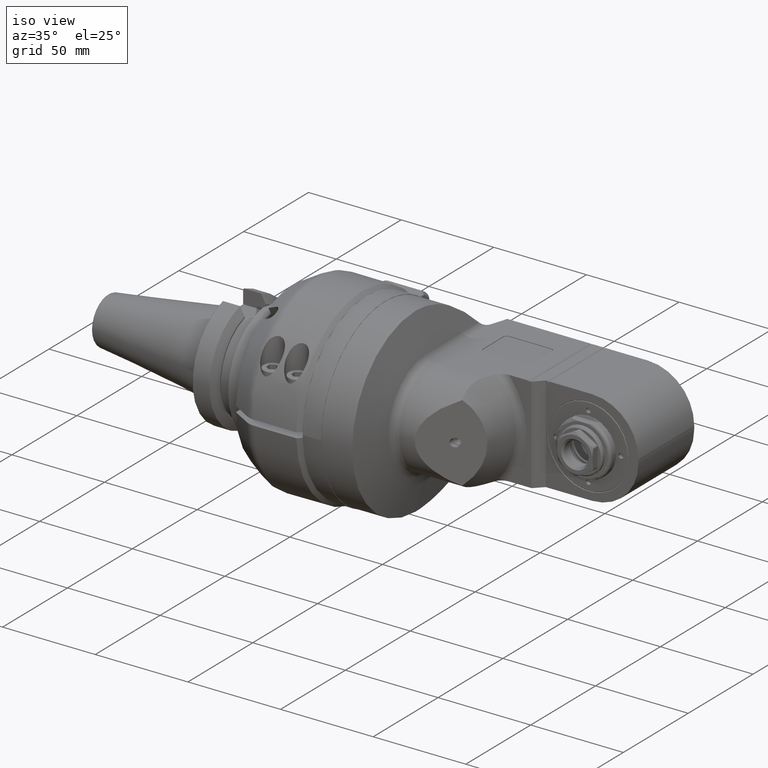
[diagram: clean part render]
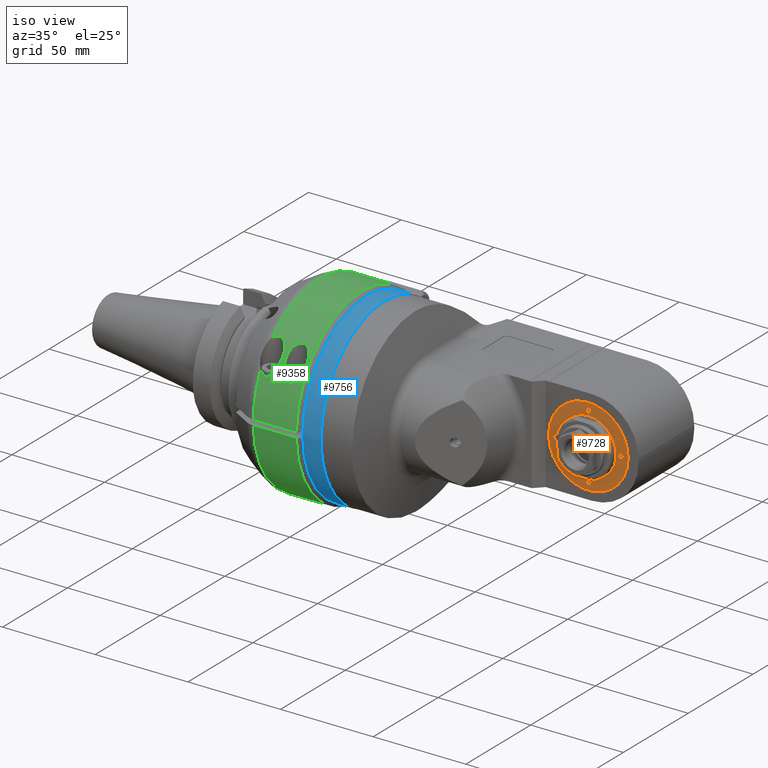
[diagram: same view with three faces highlighted in distinct colors, each labeled with its STEP entity id]
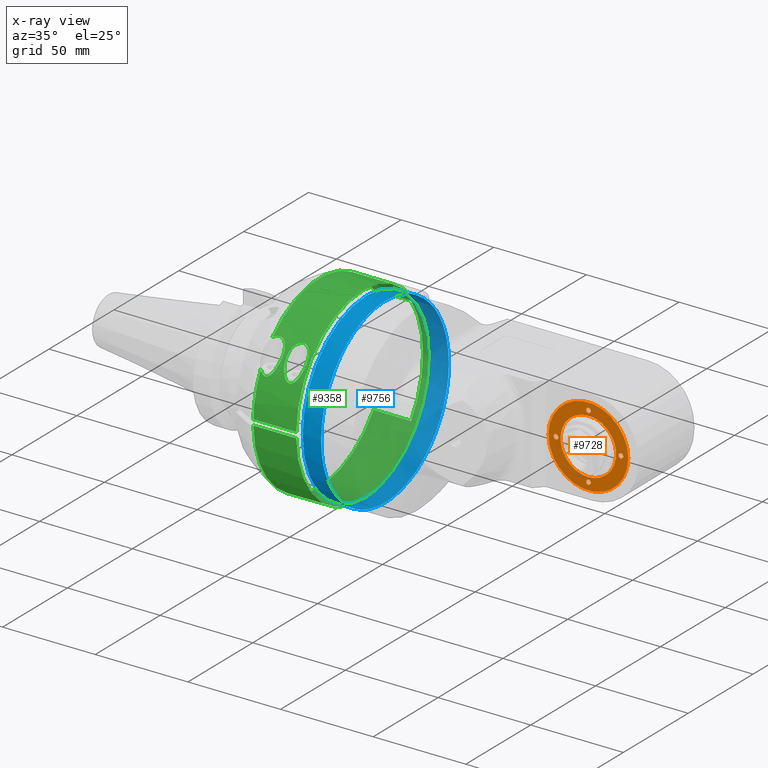
[diagram: x-ray of the same camera — body ghosted, the three highlighted faces saturated]
A machine part, iso view with three faces highlighted in distinct colors.
The next image is the same camera in x-ray (body ghosted, the three faces saturated) — at least one of them is partly hidden behind the body in this view.
Their STEP definitions:

[orange] entity #9728 — the highlighted planar face has unit normal (0, -1, 0).
#167=FACE_BOUND('',#1794,.T.);
#168=FACE_BOUND('',#1795,.T.);
#169=FACE_BOUND('',#1796,.T.);
#170=FACE_BOUND('',#1797,.T.);
#171=FACE_BOUND('',#1798,.T.);
#554=PLANE('',#10721);
#1143=FACE_OUTER_BOUND('',#1793,.T.);
#1793=EDGE_LOOP('',(#8212));
#1794=EDGE_LOOP('',(#8213));
#1795=EDGE_LOOP('',(#8214));
#1796=EDGE_LOOP('',(#8215));
#1797=EDGE_LOOP('',(#8216));
#1798=EDGE_LOOP('',(#8217));
#2368=CIRCLE('',#10717,15.);
#2370=CIRCLE('',#10722,21.5);
#2371=CIRCLE('',#10723,1.3);
#2372=CIRCLE('',#10724,1.3);
#2373=CIRCLE('',#10725,1.3);
#2374=CIRCLE('',#10726,1.3);
#4610=VERTEX_POINT('',#46944);
#4616=VERTEX_POINT('',#46960);
#4617=VERTEX_POINT('',#46962);
#4618=VERTEX_POINT('',#46964);
#4619=VERTEX_POINT('',#46966);
#4620=VERTEX_POINT('',#46968);
#5865=EDGE_CURVE('',#4610,#4610,#2368,.T.);
#5873=EDGE_CURVE('',#4616,#4616,#2370,.T.);
#5874=EDGE_CURVE('',#4617,#4617,#2371,.T.);
#5875=EDGE_CURVE('',#4618,#4618,#2372,.T.);
#5876=EDGE_CURVE('',#4619,#4619,#2373,.T.);
#5877=EDGE_CURVE('',#4620,#4620,#2374,.T.);
#8212=ORIENTED_EDGE('',*,*,#5873,.T.);
#8213=ORIENTED_EDGE('',*,*,#5874,.T.);
#8214=ORIENTED_EDGE('',*,*,#5875,.T.);
#8215=ORIENTED_EDGE('',*,*,#5865,.T.);
#8216=ORIENTED_EDGE('',*,*,#5876,.T.);
#8217=ORIENTED_EDGE('',*,*,#5877,.T.);
#9728=ADVANCED_FACE('',(#1143,#167,#168,#169,#170,#171),#554,.T.);
#10717=AXIS2_PLACEMENT_3D('',#46946,#12894,#12895);
#10721=AXIS2_PLACEMENT_3D('',#46959,#12906,#12907);
#10722=AXIS2_PLACEMENT_3D('',#46961,#12908,#12909);
#10723=AXIS2_PLACEMENT_3D('',#46963,#12910,#12911);
#10724=AXIS2_PLACEMENT_3D('',#46965,#12912,#12913);
#10725=AXIS2_PLACEMENT_3D('',#46967,#12914,#12915);
#10726=AXIS2_PLACEMENT_3D('',#46969,#12916,#12917);
#12894=DIRECTION('center_axis',(0.,1.,0.));
#12895=DIRECTION('ref_axis',(0.,0.,1.));
#12906=DIRECTION('center_axis',(0.,-1.,0.));
#12907=DIRECTION('ref_axis',(-1.,0.,0.));
#12908=DIRECTION('center_axis',(0.,-1.,0.));
#12909=DIRECTION('ref_axis',(1.,0.,0.));
#12910=DIRECTION('center_axis',(0.,1.,0.));
#12911=DIRECTION('ref_axis',(0.,0.,1.));
#12912=DIRECTION('center_axis',(0.,1.,0.));
#12913=DIRECTION('ref_axis',(0.,0.,1.));
#12914=DIRECTION('center_axis',(0.,1.,0.));
#12915=DIRECTION('ref_axis',(0.,0.,1.));
#12916=DIRECTION('center_axis',(0.,1.,0.));
#12917=DIRECTION('ref_axis',(0.,0.,1.));
#46944=CARTESIAN_POINT('',(98.5,13.5,-15.));
#46946=CARTESIAN_POINT('Origin',(98.5,13.5,1.511486624416E-14));
#46959=CARTESIAN_POINT('Origin',(114.5,13.5,1.511486624416E-14));
#46960=CARTESIAN_POINT('',(77.,13.5,1.775502529927E-14));
#46961=CARTESIAN_POINT('Origin',(98.5,13.5,1.511486624416E-14));
#46962=CARTESIAN_POINT('',(81.,13.5,-1.3));
#46963=CARTESIAN_POINT('Origin',(81.,13.5,1.42108547152E-14));
#46964=CARTESIAN_POINT('',(98.5,13.5,16.2));
#46965=CARTESIAN_POINT('Origin',(98.5,13.5,17.5));
#46966=CARTESIAN_POINT('',(116.,13.5,-1.3));
#46967=CARTESIAN_POINT('Origin',(116.,13.5,1.511486624416E-14));
#46968=CARTESIAN_POINT('',(98.5,13.5,-18.8));
#46969=CARTESIAN_POINT('Origin',(98.5,13.5,-17.5));

[blue] entity #9756 — the highlighted cylindrical surface (bore or boss wall) has radius 49.2 mm, axis along (-1, -0, 0).
#1171=FACE_OUTER_BOUND('',#1832,.T.);
#1832=EDGE_LOOP('',(#8391,#8392,#8393,#8394));
#2405=CIRCLE('',#10789,49.2);
#2406=CIRCLE('',#10791,49.2);
#3149=LINE('',#47301,#3813);
#3813=VECTOR('',#13105,49.2);
#4702=VERTEX_POINT('',#47296);
#4703=VERTEX_POINT('',#47299);
#5987=EDGE_CURVE('',#4702,#4702,#2405,.T.);
#5988=EDGE_CURVE('',#4703,#4703,#2406,.T.);
#5989=EDGE_CURVE('',#4703,#4702,#3149,.T.);
#8391=ORIENTED_EDGE('',*,*,#5988,.T.);
#8392=ORIENTED_EDGE('',*,*,#5989,.T.);
#8393=ORIENTED_EDGE('',*,*,#5987,.F.);
#8394=ORIENTED_EDGE('',*,*,#5989,.F.);
#9285=CYLINDRICAL_SURFACE('',#10790,49.2);
#9756=ADVANCED_FACE('',(#1171),#9285,.T.);
#10789=AXIS2_PLACEMENT_3D('',#47297,#13099,#13100);
#10790=AXIS2_PLACEMENT_3D('',#47298,#13101,#13102);
#10791=AXIS2_PLACEMENT_3D('',#47300,#13103,#13104);
#13099=DIRECTION('center_axis',(1.,0.,0.));
#13100=DIRECTION('ref_axis',(0.,1.,0.));
#13101=DIRECTION('center_axis',(-1.,0.,0.));
#13102=DIRECTION('ref_axis',(0.,1.,0.));
#13103=DIRECTION('center_axis',(1.,0.,0.));
#13104=DIRECTION('ref_axis',(0.,1.,0.));
#13105=DIRECTION('',(1.,0.,0.));
#47296=CARTESIAN_POINT('',(-1.8,-49.2,0.));
#47297=CARTESIAN_POINT('Origin',(-1.8,0.,0.));
#47298=CARTESIAN_POINT('Origin',(204.252876914,0.,0.));
#47299=CARTESIAN_POINT('',(-11.8,-49.2,0.));
#47300=CARTESIAN_POINT('Origin',(-11.8,0.,0.));
#47301=CARTESIAN_POINT('',(204.252876914,-49.2,6.02526225180498E-15));

[green] entity #9358 — the highlighted cylindrical surface (partial cylindrical patch) has radius 51 mm, axis along (1, 0, -0).
#115=FACE_BOUND('',#1372,.T.);
#773=FACE_OUTER_BOUND('',#1371,.T.);
#1371=EDGE_LOOP('',(#6384,#6385,#6386,#6387,#6388,#6389,#6390,#6391,#6392,
#6393,#6394));
#1372=EDGE_LOOP('',(#6395,#6396));
#2080=CIRCLE('',#10066,51.);
#2081=CIRCLE('',#10067,51.);
#2082=CIRCLE('',#10068,51.);
#2083=CIRCLE('',#10069,51.);
#2084=CIRCLE('',#10070,51.);
#2570=B_SPLINE_CURVE_WITH_KNOTS('',3,(#14018,#14019,#14020,#14021,#14022,
#14023,#14024,#14025,#14026,#14027,#14028,#14029,#14030,#14031,#14032,#14033,
#14034,#14035),.UNSPECIFIED.,.F.,.F.,(4,2,2,2,2,2,2,2,4),(1.24497996375057,
1.57211089183856,1.89924181992655,2.10031433028339,2.30138684064023,2.50245935099707,
2.70353186135391,3.0306627894419,3.35779371752989),.UNSPECIFIED.);
#2573=B_SPLINE_CURVE_WITH_KNOTS('',3,(#14113,#14114,#14115,#14116,#14117,
#14118),.UNSPECIFIED.,.F.,.F.,(4,2,4),(-0.351622839102922,-0.201072510356838,
0.),.UNSPECIFIED.);
#2574=B_SPLINE_CURVE_WITH_KNOTS('',3,(#14120,#14121,#14122,#14123,#14124,
#14125,#14126,#14127,#14128,#14129,#14130,#14131,#14132,#14133,#14134,#14135,
#14136,#14137,#14138,#14139,#14140,#14141,#14142,#14143,#14144,#14145),
 .UNSPECIFIED.,.F.,.F.,(4,2,2,2,2,2,2,2,2,2,2,2,4),(0.,0.201072510356838,
0.402145020713677,0.729275948801668,1.05640687688966,1.45814522272358,1.85988356855749,
2.08063520459886,2.19101102261954,2.30138684064023,2.41176265866091,2.52213847668159,
2.7154535046118),.UNSPECIFIED.);
#2575=B_SPLINE_CURVE_WITH_KNOTS('',3,(#14149,#14150,#14151,#14152,#14153,
#14154,#14155,#14156,#14157,#14158,#14159,#14160,#14161,#14162,#14163,#14164,
#14165,#14166,#14167,#14168,#14169,#14170,#14171),.UNSPECIFIED.,.F.,.F.,
(4,2,2,2,2,3,2,2,2,2,4),(-1.24497996375057,-0.843241617916652,-0.441503272082734,
-0.220751636041367,-0.110375818020684,0.,0.110375818020684,0.220751636041367,
0.441503272082734,0.843241617916652,1.24497996375057),.UNSPECIFIED.);
#2678=LINE('',#14056,#3342);
#2680=LINE('',#14060,#3344);
#2686=LINE('',#14107,#3350);
#2687=LINE('',#14148,#3351);
#3342=VECTOR('',#11178,20.23205080757);
#3344=VECTOR('',#11180,20.23205080757);
#3350=VECTOR('',#11192,23.23206191748);
#3351=VECTOR('',#11201,23.23206611221);
#4001=VERTEX_POINT('',#14014);
#4003=VERTEX_POINT('',#14017);
#4010=VERTEX_POINT('',#14054);
#4011=VERTEX_POINT('',#14055);
#4012=VERTEX_POINT('',#14057);
#4013=VERTEX_POINT('',#14059);
#4023=VERTEX_POINT('',#14103);
#4024=VERTEX_POINT('',#14104);
#4025=VERTEX_POINT('',#14106);
#4026=VERTEX_POINT('',#14110);
#4027=VERTEX_POINT('',#14112);
#4028=VERTEX_POINT('',#14119);
#4029=VERTEX_POINT('',#14146);
#4939=EDGE_CURVE('',#4003,#4001,#2570,.T.);
#4949=EDGE_CURVE('',#4010,#4011,#2678,.T.);
#4951=EDGE_CURVE('',#4013,#4012,#2680,.T.);
#4962=EDGE_CURVE('',#4023,#4024,#2080,.T.);
#4963=EDGE_CURVE('',#4023,#4025,#2686,.T.);
#4964=EDGE_CURVE('',#4013,#4025,#2081,.T.);
#4965=EDGE_CURVE('',#4010,#4012,#2082,.T.);
#4966=EDGE_CURVE('',#4026,#4011,#2083,.T.);
#4967=EDGE_CURVE('',#4026,#4027,#2573,.T.);
#4968=EDGE_CURVE('',#4027,#4028,#2574,.T.);
#4969=EDGE_CURVE('',#4029,#4028,#2084,.T.);
#4970=EDGE_CURVE('',#4029,#4024,#2687,.T.);
#4971=EDGE_CURVE('',#4001,#4003,#2575,.T.);
#6384=ORIENTED_EDGE('',*,*,#4962,.F.);
#6385=ORIENTED_EDGE('',*,*,#4963,.T.);
#6386=ORIENTED_EDGE('',*,*,#4964,.F.);
#6387=ORIENTED_EDGE('',*,*,#4951,.T.);
#6388=ORIENTED_EDGE('',*,*,#4965,.F.);
#6389=ORIENTED_EDGE('',*,*,#4949,.T.);
#6390=ORIENTED_EDGE('',*,*,#4966,.F.);
#6391=ORIENTED_EDGE('',*,*,#4967,.T.);
#6392=ORIENTED_EDGE('',*,*,#4968,.T.);
#6393=ORIENTED_EDGE('',*,*,#4969,.F.);
#6394=ORIENTED_EDGE('',*,*,#4970,.T.);
#6395=ORIENTED_EDGE('',*,*,#4971,.T.);
#6396=ORIENTED_EDGE('',*,*,#4939,.T.);
#9191=CYLINDRICAL_SURFACE('',#10065,51.);
#9358=ADVANCED_FACE('',(#773,#115),#9191,.T.);
#10065=AXIS2_PLACEMENT_3D('',#14102,#11188,#11189);
#10066=AXIS2_PLACEMENT_3D('',#14105,#11190,#11191);
#10067=AXIS2_PLACEMENT_3D('',#14108,#11193,#11194);
#10068=AXIS2_PLACEMENT_3D('',#14109,#11195,#11196);
#10069=AXIS2_PLACEMENT_3D('',#14111,#11197,#11198);
#10070=AXIS2_PLACEMENT_3D('',#14147,#11199,#11200);
#11178=DIRECTION('',(-1.,0.,0.));
#11180=DIRECTION('',(1.,0.,0.));
#11188=DIRECTION('center_axis',(1.,0.,0.));
#11189=DIRECTION('ref_axis',(0.,1.,1.05873409698834E-10));
#11190=DIRECTION('center_axis',(1.,0.,0.));
#11191=DIRECTION('ref_axis',(0.,1.,0.));
#11192=DIRECTION('',(-1.,-3.620724304585E-11,1.230523343791E-9));
#11193=DIRECTION('center_axis',(-1.,0.,0.));
#11194=DIRECTION('ref_axis',(0.,0.818627450980411,-0.574324904998308));
#11195=DIRECTION('center_axis',(-1.,0.,0.));
#11196=DIRECTION('ref_axis',(0.,1.,0.));
#11197=DIRECTION('center_axis',(-1.,0.,0.));
#11198=DIRECTION('ref_axis',(0.,-0.711205879844998,0.702983781088798));
#11199=DIRECTION('center_axis',(-1.,0.,0.));
#11200=DIRECTION('ref_axis',(0.,-0.999567380468613,0.0294117647058804));
#11201=DIRECTION('',(1.,4.9878538981E-11,1.695142412605E-9));
#14014=CARTESIAN_POINT('',(-15.5,-40.7216512827,30.70418728464));
#14017=CARTESIAN_POINT('',(-26.5,-40.7216512827,30.7041872846388));
#14018=CARTESIAN_POINT('Ctrl Pts',(-26.5,-40.7216512827,30.7041872846388));
#14019=CARTESIAN_POINT('Ctrl Pts',(-26.5,-40.0651617871045,31.5748612439451));
#14020=CARTESIAN_POINT('Ctrl Pts',(-26.3775309176086,-39.319256727814,32.5000944024137));
#14021=CARTESIAN_POINT('Ctrl Pts',(-25.7586754272403,-37.8511872002494,
34.1986505928683));
#14022=CARTESIAN_POINT('Ctrl Pts',(-25.2627488095064,-37.1297545962508,
34.9727734951554));
#14023=CARTESIAN_POINT('Ctrl Pts',(-24.149351972259,-36.1782586100401,35.9500095679527));
#14024=CARTESIAN_POINT('Ctrl Pts',(-23.6039156243507,-35.8317714924385,
36.2931969488346));
#14025=CARTESIAN_POINT('Ctrl Pts',(-22.364786222781,-35.3524177755747,36.760284817991));
#14026=CARTESIAN_POINT('Ctrl Pts',(-21.6702417011895,-35.2216512827,36.8840789626077));
#14027=CARTESIAN_POINT('Ctrl Pts',(-20.3297582988105,-35.2216512827,36.8840789626077));
#14028=CARTESIAN_POINT('Ctrl Pts',(-19.635213777219,-35.3524177755747,36.760284817991));
#14029=CARTESIAN_POINT('Ctrl Pts',(-18.3960843756493,-35.8317714924385,
36.2931969488346));
#14030=CARTESIAN_POINT('Ctrl Pts',(-17.850648027741,-36.1782586100401,35.9500095679527));
#14031=CARTESIAN_POINT('Ctrl Pts',(-16.7372511904936,-37.1297545962508,
34.9727734951554));
#14032=CARTESIAN_POINT('Ctrl Pts',(-16.2413245727597,-37.8511872002494,
34.1986505928683));
#14033=CARTESIAN_POINT('Ctrl Pts',(-15.6224690823914,-39.319256727814,32.5000944024137));
#14034=CARTESIAN_POINT('Ctrl Pts',(-15.5,-40.0651617871045,31.5748612439451));
#14035=CARTESIAN_POINT('Ctrl Pts',(-15.5,-40.7216512827,30.7041872846388));
#14054=CARTESIAN_POINT('',(-17.,41.75,29.29057015492));
#14055=CARTESIAN_POINT('',(-37.23205080757,41.75,29.29057015492));
#14056=CARTESIAN_POINT('',(-17.,41.75,29.29057015492));
#14057=CARTESIAN_POINT('',(-17.,41.75,-29.29057015492));
#14059=CARTESIAN_POINT('',(-37.23205080757,41.75,-29.29057015492));
#14060=CARTESIAN_POINT('',(-37.23205080757,41.75,-29.29057015492));
#14102=CARTESIAN_POINT('Origin',(-43.,0.,0.));
#14103=CARTESIAN_POINT('',(-14.,-50.9779364039,-1.5));
#14104=CARTESIAN_POINT('',(-14.,-50.9779364039,1.5));
#14105=CARTESIAN_POINT('Origin',(-14.,0.,0.));
#14106=CARTESIAN_POINT('',(-37.2320508150874,-50.9779364043201,-1.49999998570621));
#14107=CARTESIAN_POINT('',(-14.,-50.9779364039,-1.5));
#14108=CARTESIAN_POINT('Origin',(-37.23205080757,0.,0.));
#14109=CARTESIAN_POINT('Origin',(-17.,0.,0.));
#14110=CARTESIAN_POINT('',(-37.23205080757,-36.27149987209,35.85217283553));
#14111=CARTESIAN_POINT('Origin',(-37.23205080757,0.,0.));
#14112=CARTESIAN_POINT('',(-34.,-35.2216512827,36.8840789626077));
#14113=CARTESIAN_POINT('Ctrl Pts',(-37.2320508075659,-36.2714998720946,
35.8521728355289));
#14114=CARTESIAN_POINT('Ctrl Pts',(-36.872037357752,-36.0100297211167,36.116701141561));
#14115=CARTESIAN_POINT('Ctrl Pts',(-36.44824163253,-35.7715494474255,36.3518780139684));
#14116=CARTESIAN_POINT('Ctrl Pts',(-35.364786222781,-35.3524177755747,36.760284817991));
#14117=CARTESIAN_POINT('Ctrl Pts',(-34.6702417011895,-35.2216512827,36.8840789626077));
#14118=CARTESIAN_POINT('Ctrl Pts',(-34.,-35.2216512827,36.8840789626077));
#14119=CARTESIAN_POINT('',(-37.23205080757,-45.1718026933,23.67505525733));
#14120=CARTESIAN_POINT('Ctrl Pts',(-34.,-35.2216512827,36.8840789626077));
#14121=CARTESIAN_POINT('Ctrl Pts',(-33.3297582988105,-35.2216512827,36.8840789626077));
#14122=CARTESIAN_POINT('Ctrl Pts',(-32.635213777219,-35.3524177755747,36.760284817991));
#14123=CARTESIAN_POINT('Ctrl Pts',(-31.3960843756493,-35.8317714924385,
36.2931969488346));
#14124=CARTESIAN_POINT('Ctrl Pts',(-30.850648027741,-36.1782586100401,35.9500095679527));
#14125=CARTESIAN_POINT('Ctrl Pts',(-29.7372511904936,-37.1297545962508,
34.9727734951554));
#14126=CARTESIAN_POINT('Ctrl Pts',(-29.2413245727597,-37.8511872002494,
34.1986505928683));
#14127=CARTESIAN_POINT('Ctrl Pts',(-28.6224690823914,-39.319256727814,32.5000944024137));
#14128=CARTESIAN_POINT('Ctrl Pts',(-28.5,-40.0651617871045,31.5748612439451));
#14129=CARTESIAN_POINT('Ctrl Pts',(-28.5,-41.5278636624324,29.6349422633357));
#14130=CARTESIAN_POINT('Ctrl Pts',(-28.6828935944427,-42.355228362554,28.4428786872814));
#14131=CARTESIAN_POINT('Ctrl Pts',(-29.4026147018995,-43.8528254301532,
26.0747465478085));
#14132=CARTESIAN_POINT('Ctrl Pts',(-29.9314939989374,-44.5246315328702,
24.8972647332227));
#14133=CARTESIAN_POINT('Ctrl Pts',(-31.001270294294,-45.3572445916551,23.326334884601));
#14134=CARTESIAN_POINT('Ctrl Pts',(-31.480842706606,-45.6482368635351,22.7481982089167));
#14135=CARTESIAN_POINT('Ctrl Pts',(-32.3308258147761,-45.9710043968678,
22.0845481334827));
#14136=CARTESIAN_POINT('Ctrl Pts',(-32.6354867073276,-46.0599916909384,
21.8974583438779));
#14137=CARTESIAN_POINT('Ctrl Pts',(-33.286197560497,-46.1851905126261,21.6321449190877));
#14138=CARTESIAN_POINT('Ctrl Pts',(-33.6320806065977,-46.2216512827,21.5536296873747));
#14139=CARTESIAN_POINT('Ctrl Pts',(-34.3679193934023,-46.2216512827,21.5536296873747));
#14140=CARTESIAN_POINT('Ctrl Pts',(-34.713802439503,-46.1851905126261,21.6321449190877));
#14141=CARTESIAN_POINT('Ctrl Pts',(-35.3645132926724,-46.0599916909384,
21.8974583438779));
#14142=CARTESIAN_POINT('Ctrl Pts',(-35.6691741852239,-45.9710043968678,
22.0845481334827));
#14143=CARTESIAN_POINT('Ctrl Pts',(-36.4487292658961,-45.6749807840842,
22.6932093917128));
#14144=CARTESIAN_POINT('Ctrl Pts',(-36.8782785168307,-45.4287400225037,
23.1848210334514));
#14145=CARTESIAN_POINT('Ctrl Pts',(-37.2320508075737,-45.1718026932997,
23.6750552573295));
#14146=CARTESIAN_POINT('',(-37.2320508231036,-50.9779364044793,1.499999980309));
#14147=CARTESIAN_POINT('Origin',(-37.23205080757,0.,0.));
#14148=CARTESIAN_POINT('',(-37.23206611221,-50.97793640506,1.499999960618));
#14149=CARTESIAN_POINT('Ctrl Pts',(-15.5,-40.7216512827,30.7041872846388));
#14150=CARTESIAN_POINT('Ctrl Pts',(-15.5,-41.5278636624324,29.6349422633357));
#14151=CARTESIAN_POINT('Ctrl Pts',(-15.6828935944427,-42.355228362554,28.4428786872814));
#14152=CARTESIAN_POINT('Ctrl Pts',(-16.4026147018995,-43.8528254301532,
26.0747465478085));
#14153=CARTESIAN_POINT('Ctrl Pts',(-16.9314939989374,-44.5246315328702,
24.8972647332227));
#14154=CARTESIAN_POINT('Ctrl Pts',(-18.001270294294,-45.3572445916551,23.326334884601));
#14155=CARTESIAN_POINT('Ctrl Pts',(-18.480842706606,-45.6482368635351,22.7481982089167));
#14156=CARTESIAN_POINT('Ctrl Pts',(-19.3308258147761,-45.9710043968678,
22.0845481334827));
#14157=CARTESIAN_POINT('Ctrl Pts',(-19.6354867073276,-46.0599916909384,
21.8974583438779));
#14158=CARTESIAN_POINT('Ctrl Pts',(-20.286197560497,-46.1851905126261,21.6321449190877));
#14159=CARTESIAN_POINT('Ctrl Pts',(-20.6320806065977,-46.2216512827,21.5536296873747));
#14160=CARTESIAN_POINT('Ctrl Pts',(-21.,-46.2216512827,21.5536296873747));
#14161=CARTESIAN_POINT('Ctrl Pts',(-21.3679193934023,-46.2216512827,21.5536296873747));
#14162=CARTESIAN_POINT('Ctrl Pts',(-21.713802439503,-46.1851905126261,21.6321449190877));
#14163=CARTESIAN_POINT('Ctrl Pts',(-22.3645132926724,-46.0599916909384,
21.8974583438779));
#14164=CARTESIAN_POINT('Ctrl Pts',(-22.6691741852239,-45.9710043968678,
22.0845481334827));
#14165=CARTESIAN_POINT('Ctrl Pts',(-23.519157293394,-45.6482368635351,22.7481982089167));
#14166=CARTESIAN_POINT('Ctrl Pts',(-23.998729705706,-45.3572445916551,23.326334884601));
#14167=CARTESIAN_POINT('Ctrl Pts',(-25.0685060010626,-44.5246315328702,
24.8972647332227));
#14168=CARTESIAN_POINT('Ctrl Pts',(-25.5973852981005,-43.8528254301532,
26.0747465478085));
#14169=CARTESIAN_POINT('Ctrl Pts',(-26.3171064055573,-42.355228362554,28.4428786872814));
#14170=CARTESIAN_POINT('Ctrl Pts',(-26.5,-41.5278636624324,29.6349422633357));
#14171=CARTESIAN_POINT('Ctrl Pts',(-26.5,-40.7216512827,30.7041872846388));